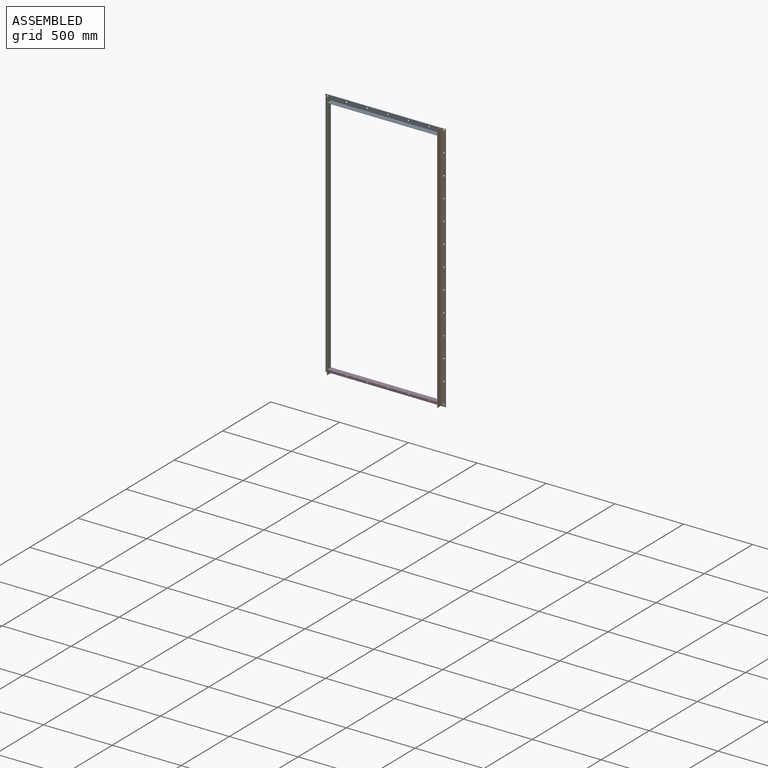
[diagram: assembled view]
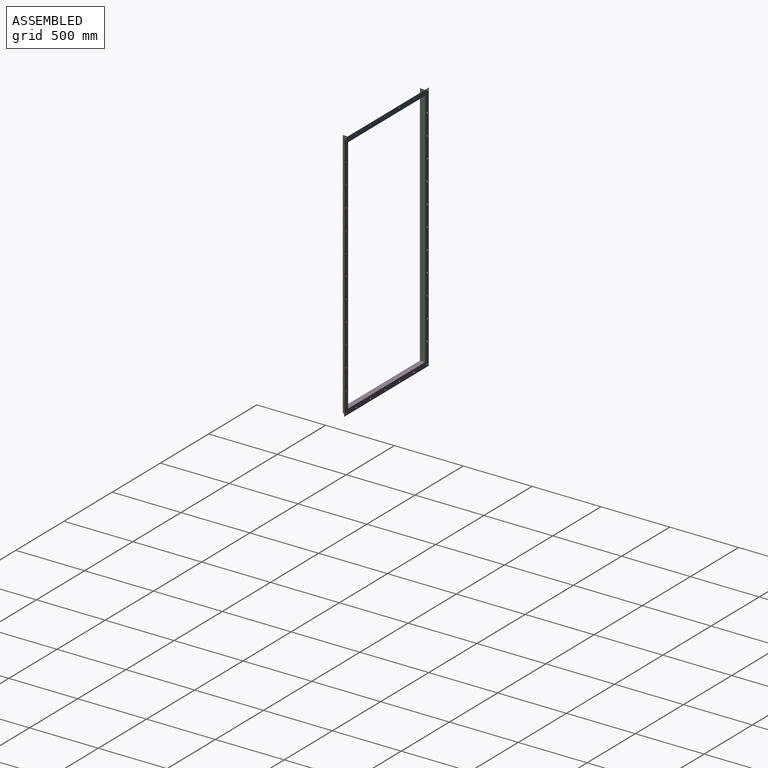
[diagram: assembled view, second angle]
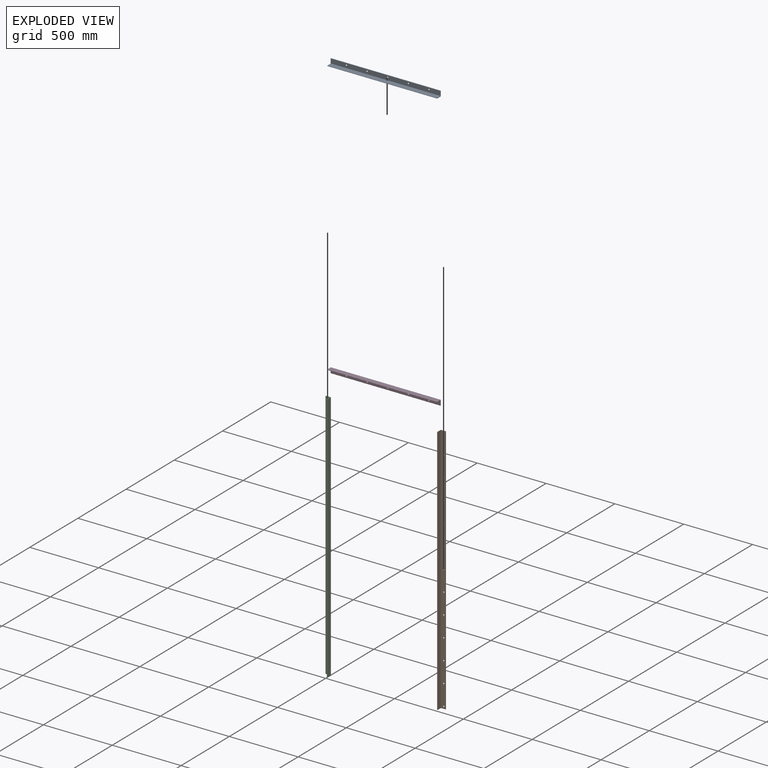
[diagram: exploded view]
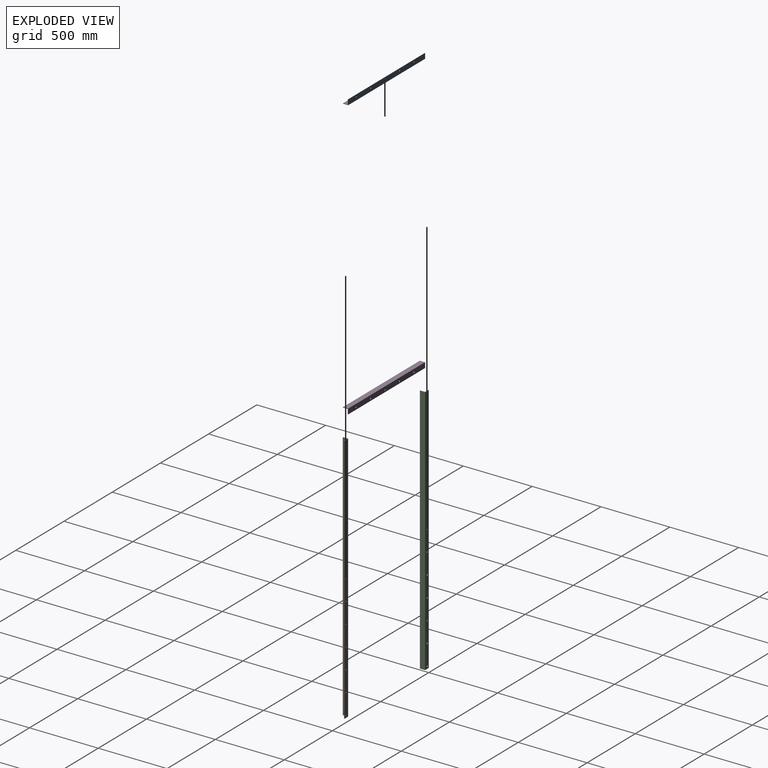
[diagram: exploded view, second angle]
ASSEMBLY  parts=4 mates=3
PART A: 16 faces, bbox 798x38x38 mm
  f0: plane 798x1.59mm, normal (0,0,1), area 1266.8mm2, adj f1,f8,f9,f10
  f1: cylinder r=1.59mm len=798mm, axis (-1,0,0), area 1989.9mm2, adj f0,f2,f9,f10
  f2: plane 798x31.65mm, normal (0,-1,0), area 24900.4mm2, adj f1,f3,f9,f10,f11,f12,f13,f14
  f3: cylinder r=1.59mm len=798mm, axis (-1,0,0), area 1989.9mm2, adj f2,f4,f9,f10
  f4: plane 798x31.65mm, normal (0,0,1), area 25256.7mm2, adj f3,f5,f9,f10
  f5: cylinder r=1.59mm len=798mm, axis (-1,0,0), area 1989.9mm2, adj f4,f6,f9,f10
  f6: plane 798x1.59mm, normal (0,-1,0), area 1266.8mm2, adj f5,f7,f9,f10
  f7: plane 798x38mm, normal (0,0,-1), area 30324mm2, adj f6,f8,f9,f10
  f8: plane 798x38mm, normal (0,1,0), area 29967.7mm2, adj f0,f7,f9,f10,f11,f12,f13,f14
  f9: plane 38x38mm, normal (1,0,0), area 230.7mm2, adj f0,f1,f2,f3,f4,f5,f6,f7
  f10: plane 38x38mm, normal (-1,0,0), area 230.7mm2, adj f0,f1,f2,f3,f4,f5,f6,f7
  f11: cylinder r=4.76mm len=9.53mm, axis (0,1,0), area 95mm2, adj f2,f8
  f12: cylinder r=4.76mm len=9.53mm, axis (0,1,0), area 95mm2, adj f2,f8
  f13: cylinder r=4.76mm len=9.53mm, axis (0,1,0), area 95mm2, adj f2,f8
  f14: cylinder r=4.76mm len=9.53mm, axis (0,1,0), area 95mm2, adj f2,f8
  f15: cylinder r=4.76mm len=9.53mm, axis (0,1,0), area 95mm2, adj f2,f8
PART B: 24 faces, bbox 38x38x1825 mm
  f0: plane 1825x1.65mm, normal (1,0,0), area 3013.1mm2, adj f1,f8,f9,f10
  f1: plane 1825x38mm, normal (0,1,0), area 68423.7mm2, adj f0,f2,f9,f10,f11,f12,f13,f14
  f2: plane 1825x38mm, normal (-1,0,0), area 69350mm2, adj f1,f3,f9,f10
  f3: plane 1825x1.65mm, normal (0,-1,0), area 3013.1mm2, adj f2,f4,f9,f10
  f4: cylinder r=1.52mm len=1825mm, axis (0,0,-1), area 4368.9mm2, adj f3,f5,f9,f10
  f5: plane 1825x31.78mm, normal (1,0,0), area 57993mm2, adj f4,f6,f9,f10
  f6: cylinder r=1.52mm len=1825mm, axis (0,0,-1), area 4368.9mm2, adj f5,f7,f9,f10
  f7: plane 1825x31.78mm, normal (0,-1,0), area 57066.7mm2, adj f6,f8,f9,f10,f11,f12,f13,f14
  f8: cylinder r=1.52mm len=1825mm, axis (0,0,-1), area 4368.9mm2, adj f0,f7,f9,f10
  f9: plane 38x38mm, normal (0,0,1), area 230.7mm2, adj f0,f1,f2,f3,f4,f5,f6,f7
  f10: plane 38x38mm, normal (0,0,-1), area 230.7mm2, adj f0,f1,f2,f3,f4,f5,f6,f7
  f11: cylinder r=4.76mm len=9.53mm, axis (0,1,0), area 95mm2, adj f1,f7
  f12: cylinder r=4.76mm len=9.53mm, axis (0,1,0), area 95mm2, adj f1,f7
  f13: cylinder r=4.76mm len=9.53mm, axis (0,1,0), area 95mm2, adj f1,f7
  f14: cylinder r=4.76mm len=9.53mm, axis (0,1,0), area 95mm2, adj f1,f7
  f15: cylinder r=4.76mm len=9.53mm, axis (0,1,0), area 95mm2, adj f1,f7
  f16: cylinder r=4.76mm len=9.53mm, axis (0,1,0), area 95mm2, adj f1,f7
  f17: cylinder r=4.76mm len=9.53mm, axis (0,1,0), area 95mm2, adj f1,f7
  f18: cylinder r=4.76mm len=9.53mm, axis (0,1,0), area 95mm2, adj f1,f7
  f19: cylinder r=4.76mm len=9.53mm, axis (0,1,0), area 95mm2, adj f1,f7
  f20: cylinder r=4.76mm len=9.53mm, axis (0,1,0), area 95mm2, adj f1,f7
  f21: cylinder r=4.76mm len=9.53mm, axis (0,1,0), area 95mm2, adj f1,f7
  f22: cylinder r=4.76mm len=9.53mm, axis (0,1,0), area 95mm2, adj f1,f7
  f23: cylinder r=4.76mm len=9.53mm, axis (0,1,0), area 95mm2, adj f1,f7
PART C: 24 faces, bbox 38x38x1825 mm
  f0: plane 1825x1.65mm, normal (-1,0,0), area 3013.1mm2, adj f1,f8,f9,f10
  f1: cylinder r=1.52mm len=1825mm, axis (0,0,-1), area 4368.9mm2, adj f0,f2,f9,f10
  f2: plane 1825x31.78mm, normal (0,-1,0), area 57066.7mm2, adj f1,f3,f9,f10,f11,f12,f13,f14
  f3: cylinder r=1.52mm len=1825mm, axis (0,0,-1), area 4368.9mm2, adj f2,f4,f9,f10
  f4: plane 1825x31.78mm, normal (-1,0,0), area 57993mm2, adj f3,f5,f9,f10
  f5: cylinder r=1.52mm len=1825mm, axis (0,0,-1), area 4368.9mm2, adj f4,f6,f9,f10
  f6: plane 1825x1.65mm, normal (0,-1,0), area 3013.1mm2, adj f5,f7,f9,f10
  f7: plane 1825x38mm, normal (1,0,0), area 69350mm2, adj f6,f8,f9,f10
  f8: plane 1825x38mm, normal (0,1,0), area 68423.7mm2, adj f0,f7,f9,f10,f11,f12,f13,f14
  f9: plane 38x38mm, normal (0,0,1), area 230.7mm2, adj f0,f1,f2,f3,f4,f5,f6,f7
  f10: plane 38x38mm, normal (0,0,-1), area 230.7mm2, adj f0,f1,f2,f3,f4,f5,f6,f7
  f11: cylinder r=4.76mm len=9.53mm, axis (0,1,0), area 95mm2, adj f2,f8
  f12: cylinder r=4.76mm len=9.53mm, axis (0,1,0), area 95mm2, adj f2,f8
  f13: cylinder r=4.76mm len=9.53mm, axis (0,1,0), area 95mm2, adj f2,f8
  f14: cylinder r=4.76mm len=9.53mm, axis (0,1,0), area 95mm2, adj f2,f8
  f15: cylinder r=4.76mm len=9.53mm, axis (0,1,0), area 95mm2, adj f2,f8
  f16: cylinder r=4.76mm len=9.53mm, axis (0,1,0), area 95mm2, adj f2,f8
  f17: cylinder r=4.76mm len=9.53mm, axis (0,1,0), area 95mm2, adj f2,f8
  f18: cylinder r=4.76mm len=9.53mm, axis (0,1,0), area 95mm2, adj f2,f8
  f19: cylinder r=4.76mm len=9.53mm, axis (0,1,0), area 95mm2, adj f2,f8
  f20: cylinder r=4.76mm len=9.53mm, axis (0,1,0), area 95mm2, adj f2,f8
  f21: cylinder r=4.76mm len=9.53mm, axis (0,1,0), area 95mm2, adj f2,f8
  f22: cylinder r=4.76mm len=9.53mm, axis (0,1,0), area 95mm2, adj f2,f8
  f23: cylinder r=4.76mm len=9.53mm, axis (0,1,0), area 95mm2, adj f2,f8
PART D: 16 faces, bbox 798x38x38 mm
  f0: plane 798x1.59mm, normal (0,0,-1), area 1266.8mm2, adj f1,f8,f9,f10
  f1: plane 798x38mm, normal (0,1,0), area 29967.7mm2, adj f0,f2,f9,f10,f11,f12,f13,f14
  f2: plane 798x38mm, normal (0,0,1), area 30324mm2, adj f1,f3,f9,f10
  f3: plane 798x1.59mm, normal (0,-1,0), area 1266.8mm2, adj f2,f4,f9,f10
  f4: cylinder r=1.59mm len=798mm, axis (-1,0,0), area 1989.9mm2, adj f3,f5,f9,f10
  f5: plane 798x31.65mm, normal (0,0,-1), area 25256.7mm2, adj f4,f6,f9,f10
  f6: cylinder r=1.59mm len=798mm, axis (-1,0,0), area 1989.9mm2, adj f5,f7,f9,f10
  f7: plane 798x31.65mm, normal (0,-1,0), area 24900.4mm2, adj f6,f8,f9,f10,f11,f12,f13,f14
  f8: cylinder r=1.59mm len=798mm, axis (-1,0,0), area 1989.9mm2, adj f0,f7,f9,f10
  f9: plane 38x38mm, normal (1,0,0), area 230.7mm2, adj f0,f1,f2,f3,f4,f5,f6,f7
  f10: plane 38x38mm, normal (-1,0,0), area 230.7mm2, adj f0,f1,f2,f3,f4,f5,f6,f7
  f11: cylinder r=4.76mm len=9.53mm, axis (0,1,0), area 95mm2, adj f1,f7
  f12: cylinder r=4.76mm len=9.53mm, axis (0,1,0), area 95mm2, adj f1,f7
  f13: cylinder r=4.76mm len=9.53mm, axis (0,1,0), area 95mm2, adj f1,f7
  f14: cylinder r=4.76mm len=9.53mm, axis (0,1,0), area 95mm2, adj f1,f7
  f15: cylinder r=4.76mm len=9.53mm, axis (0,1,0), area 95mm2, adj f1,f7
PLACE A t=(437,0,874.5)mm
PLACE B t=(475,0,912.5)mm
PLACE C t=(399,0,912.5)mm
PLACE D t=(437,0,950.5)mm
MATE fastened C.f9 <-> A.f0  axis (0,0,1) through (38,0,1825)mm
MATE fastened B.f9 <-> A.f0  axis (0,0,1) through (836,0,1825)mm
MATE fastened D.f0 <-> B.f10  axis (0,0,-1) through (836,0,0)mm
